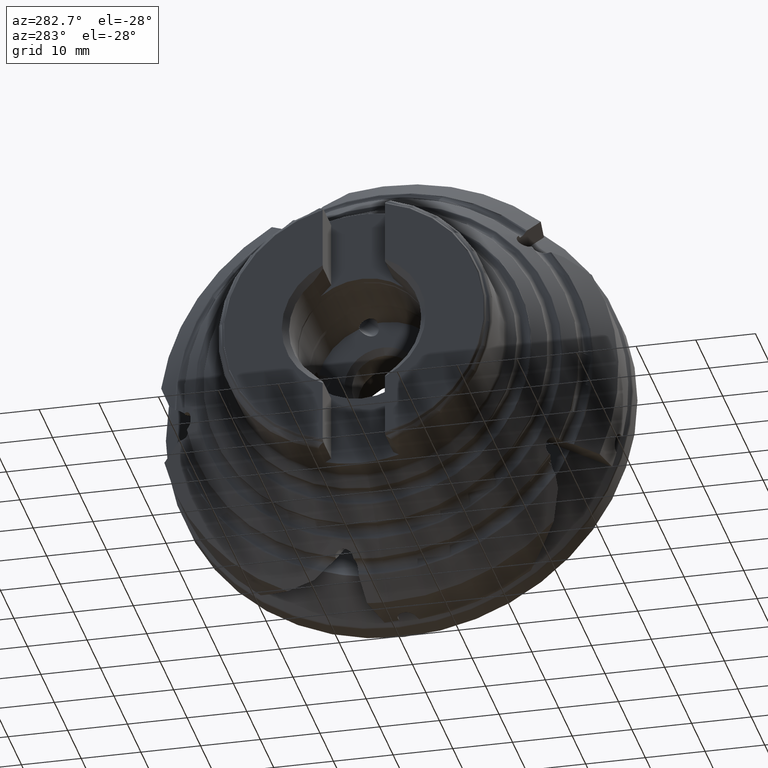
[diagram: clean part render]
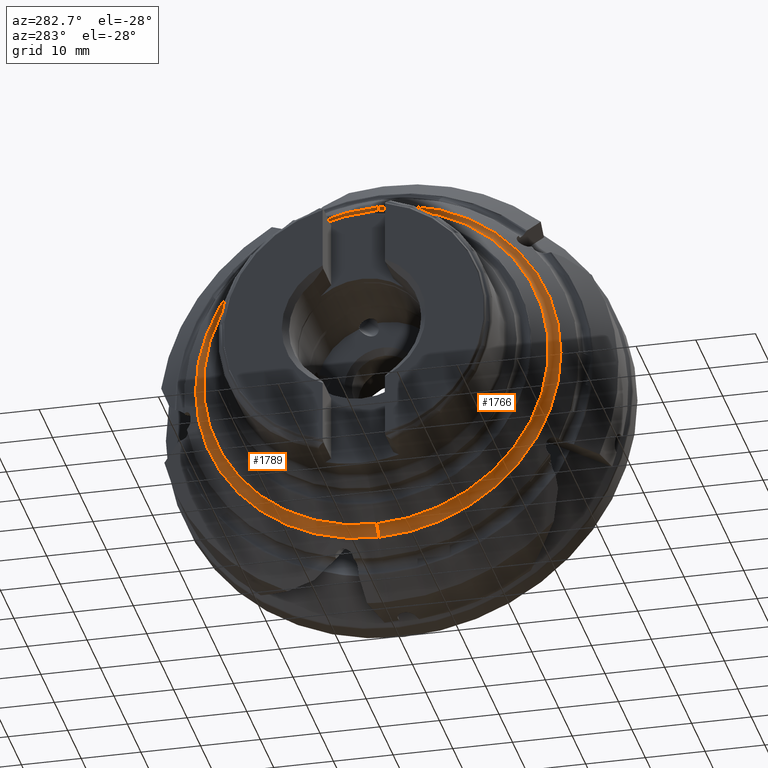
[diagram: same view with one multi-face feature highlighted, each face labeled with its STEP entity id]
A machine part, auxiliary view. The highlighted faces form ONE feature: a constant-radius fillet chain: 2 tangent blend faces with common blend radius 1.5 mm. The faces share edges in the B-rep.
Their STEP definitions:
[1] entity #1766 (Torus):
#555 = ORIENTED_EDGE ( 'NONE', *, *, #8758, .F. ) ;
#824 = TOROIDAL_SURFACE ( 'NONE', #10168, 30.35504403266119800, 1.499999999999998900 ) ;
#825 = FACE_OUTER_BOUND ( 'NONE', #10026, .T. ) ;
#1199 = ORIENTED_EDGE ( 'NONE', *, *, #8573, .T. ) ;
#1200 = ORIENTED_EDGE ( 'NONE', *, *, #8498, .T. ) ;
#1202 = ORIENTED_EDGE ( 'NONE', *, *, #8512, .F. ) ;
#1766 = ADVANCED_FACE ( 'NONE', ( #825 ), #824, .F. ) ;
#3441 = VERTEX_POINT ( 'NONE', #8104 ) ;
#3506 = VERTEX_POINT ( 'NONE', #8132 ) ;
#3570 = VERTEX_POINT ( 'NONE', #8146 ) ;
#3622 = VERTEX_POINT ( 'NONE', #8167 ) ;
#4640 = CARTESIAN_POINT ( 'NONE',  ( -26.90455623071700200, 3.717420751257550200E-015, 30.35504403266119800 ) ) ;
#4641 = DIRECTION ( 'NONE',  ( 0.0000000000000000000, 1.000000000000000000, -1.224646799147353200E-016 ) ) ;
#4642 = DIRECTION ( 'NONE',  ( 0.0000000000000000000, 1.224646799147349500E-016, 1.000000000000000000 ) ) ;
#6508 = CARTESIAN_POINT ( 'NONE',  ( -26.90455623071700200, 0.0000000000000000000, 0.0000000000000000000 ) ) ;
#6509 = DIRECTION ( 'NONE',  ( 1.000000000000000000, -0.0000000000000000000, -0.0000000000000000000 ) ) ;
#6510 = DIRECTION ( 'NONE',  ( 0.0000000000000000000, 0.0000000000000000000, -1.000000000000000000 ) ) ;
#6576 = CARTESIAN_POINT ( 'NONE',  ( -25.42365777867876300, 0.0000000000000000000, 0.0000000000000000000 ) ) ;
#6577 = DIRECTION ( 'NONE',  ( 1.000000000000000000, -0.0000000000000000000, -0.0000000000000000000 ) ) ;
#6578 = DIRECTION ( 'NONE',  ( 0.0000000000000000000, 0.0000000000000000000, -1.000000000000000000 ) ) ;
#6618 = AXIS2_PLACEMENT_3D ( 'NONE', #6508, #6509, #6510 ) ;
#6631 = AXIS2_PLACEMENT_3D ( 'NONE', #6576, #6577, #6578 ) ;
#6668 = AXIS2_PLACEMENT_3D ( 'NONE', #4640, #4641, #4642 ) ;
#6696 = AXIS2_PLACEMENT_3D ( 'NONE', #7465, #7466, #7467 ) ;
#6791 = DIRECTION ( 'NONE',  ( 1.000000000000000000, -0.0000000000000000000, -0.0000000000000000000 ) ) ;
#6793 = CARTESIAN_POINT ( 'NONE',  ( -26.90455623071700200, 0.0000000000000000000, 0.0000000000000000000 ) ) ;
#6796 = DIRECTION ( 'NONE',  ( 0.0000000000000000000, 0.0000000000000000000, -1.000000000000000000 ) ) ;
#7465 = CARTESIAN_POINT ( 'NONE',  ( -26.90455623071700200, 0.0000000000000000000, -30.35504403266119800 ) ) ;
#7466 = DIRECTION ( 'NONE',  ( -0.0000000000000000000, -1.000000000000000000, -0.0000000000000000000 ) ) ;
#7467 = DIRECTION ( 'NONE',  ( 0.0000000000000000000, 0.0000000000000000000, -1.000000000000000000 ) ) ;
#8104 = CARTESIAN_POINT ( 'NONE',  ( -25.42365777867876300, 3.762591423357442500E-015, 30.59366459914856400 ) ) ;
#8132 = CARTESIAN_POINT ( 'NONE',  ( -26.90455623071700200, 0.0000000000000000000, -28.85504403266120100 ) ) ;
#8146 = CARTESIAN_POINT ( 'NONE',  ( -25.42365777867876300, 0.0000000000000000000, -30.59366459914856400 ) ) ;
#8167 = CARTESIAN_POINT ( 'NONE',  ( -26.90455623071700200, 3.533723731385447500E-015, 28.85504403266120100 ) ) ;
#8498 = EDGE_CURVE ( 'NONE', #3622, #3506, #8973, .T. ) ;
#8512 = EDGE_CURVE ( 'NONE', #3441, #3570, #8986, .T. ) ;
#8573 = EDGE_CURVE ( 'NONE', #3441, #3622, #9047, .T. ) ;
#8758 = EDGE_CURVE ( 'NONE', #3570, #3506, #9121, .T. ) ;
#8973 = CIRCLE ( 'NONE', #6618, 28.85504403266120100 ) ;
#8986 = CIRCLE ( 'NONE', #6631, 30.59366459914856400 ) ;
#9047 = CIRCLE ( 'NONE', #6668, 1.500000000000001300 ) ;
#9121 = CIRCLE ( 'NONE', #6696, 1.500000000000001300 ) ;
#10026 = EDGE_LOOP ( 'NONE', ( #1199, #1200, #555, #1202 ) ) ;
#10168 = AXIS2_PLACEMENT_3D ( 'NONE', #6793, #6791, #6796 ) ;
[2] entity #1789 (Torus):
#370 = ORIENTED_EDGE ( 'NONE', *, *, #8574, .F. ) ;
#535 = ORIENTED_EDGE ( 'NONE', *, *, #8573, .F. ) ;
#560 = ORIENTED_EDGE ( 'NONE', *, *, #8758, .T. ) ;
#900 = FACE_OUTER_BOUND ( 'NONE', #9868, .T. ) ;
#927 = TOROIDAL_SURFACE ( 'NONE', #10114, 30.35504403266119800, 1.499999999999998900 ) ;
#1139 = ORIENTED_EDGE ( 'NONE', *, *, #8724, .T. ) ;
#1789 = ADVANCED_FACE ( 'NONE', ( #900 ), #927, .F. ) ;
#3441 = VERTEX_POINT ( 'NONE', #8104 ) ;
#3506 = VERTEX_POINT ( 'NONE', #8132 ) ;
#3570 = VERTEX_POINT ( 'NONE', #8146 ) ;
#3622 = VERTEX_POINT ( 'NONE', #8167 ) ;
#4640 = CARTESIAN_POINT ( 'NONE',  ( -26.90455623071700200, 3.717420751257550200E-015, 30.35504403266119800 ) ) ;
#4641 = DIRECTION ( 'NONE',  ( 0.0000000000000000000, 1.000000000000000000, -1.224646799147353200E-016 ) ) ;
#4642 = DIRECTION ( 'NONE',  ( 0.0000000000000000000, 1.224646799147349500E-016, 1.000000000000000000 ) ) ;
#4645 = CARTESIAN_POINT ( 'NONE',  ( -25.42365777867876300, 0.0000000000000000000, 0.0000000000000000000 ) ) ;
#4646 = DIRECTION ( 'NONE',  ( 1.000000000000000000, -0.0000000000000000000, -0.0000000000000000000 ) ) ;
#4647 = DIRECTION ( 'NONE',  ( 0.0000000000000000000, 0.0000000000000000000, -1.000000000000000000 ) ) ;
#4914 = CARTESIAN_POINT ( 'NONE',  ( -26.90455623071700200, 0.0000000000000000000, 0.0000000000000000000 ) ) ;
#4915 = DIRECTION ( 'NONE',  ( 1.000000000000000000, -0.0000000000000000000, -0.0000000000000000000 ) ) ;
#4916 = DIRECTION ( 'NONE',  ( 0.0000000000000000000, 0.0000000000000000000, -1.000000000000000000 ) ) ;
#6668 = AXIS2_PLACEMENT_3D ( 'NONE', #4640, #4641, #4642 ) ;
#6669 = AXIS2_PLACEMENT_3D ( 'NONE', #4645, #4646, #4647 ) ;
#6685 = AXIS2_PLACEMENT_3D ( 'NONE', #4914, #4915, #4916 ) ;
#6696 = AXIS2_PLACEMENT_3D ( 'NONE', #7465, #7466, #7467 ) ;
#6893 = CARTESIAN_POINT ( 'NONE',  ( -26.90455623071700200, 0.0000000000000000000, 0.0000000000000000000 ) ) ;
#6895 = DIRECTION ( 'NONE',  ( 1.000000000000000000, -0.0000000000000000000, -0.0000000000000000000 ) ) ;
#6899 = DIRECTION ( 'NONE',  ( 0.0000000000000000000, 0.0000000000000000000, -1.000000000000000000 ) ) ;
#7465 = CARTESIAN_POINT ( 'NONE',  ( -26.90455623071700200, 0.0000000000000000000, -30.35504403266119800 ) ) ;
#7466 = DIRECTION ( 'NONE',  ( -0.0000000000000000000, -1.000000000000000000, -0.0000000000000000000 ) ) ;
#7467 = DIRECTION ( 'NONE',  ( 0.0000000000000000000, 0.0000000000000000000, -1.000000000000000000 ) ) ;
#8104 = CARTESIAN_POINT ( 'NONE',  ( -25.42365777867876300, 3.762591423357442500E-015, 30.59366459914856400 ) ) ;
#8132 = CARTESIAN_POINT ( 'NONE',  ( -26.90455623071700200, 0.0000000000000000000, -28.85504403266120100 ) ) ;
#8146 = CARTESIAN_POINT ( 'NONE',  ( -25.42365777867876300, 0.0000000000000000000, -30.59366459914856400 ) ) ;
#8167 = CARTESIAN_POINT ( 'NONE',  ( -26.90455623071700200, 3.533723731385447500E-015, 28.85504403266120100 ) ) ;
#8573 = EDGE_CURVE ( 'NONE', #3441, #3622, #9047, .T. ) ;
#8574 = EDGE_CURVE ( 'NONE', #3570, #3441, #9049, .T. ) ;
#8724 = EDGE_CURVE ( 'NONE', #3506, #3622, #9085, .T. ) ;
#8758 = EDGE_CURVE ( 'NONE', #3570, #3506, #9121, .T. ) ;
#9047 = CIRCLE ( 'NONE', #6668, 1.500000000000001300 ) ;
#9049 = CIRCLE ( 'NONE', #6669, 30.59366459914856400 ) ;
#9085 = CIRCLE ( 'NONE', #6685, 28.85504403266120100 ) ;
#9121 = CIRCLE ( 'NONE', #6696, 1.500000000000001300 ) ;
#9868 = EDGE_LOOP ( 'NONE', ( #560, #1139, #535, #370 ) ) ;
#10114 = AXIS2_PLACEMENT_3D ( 'NONE', #6893, #6895, #6899 ) ;